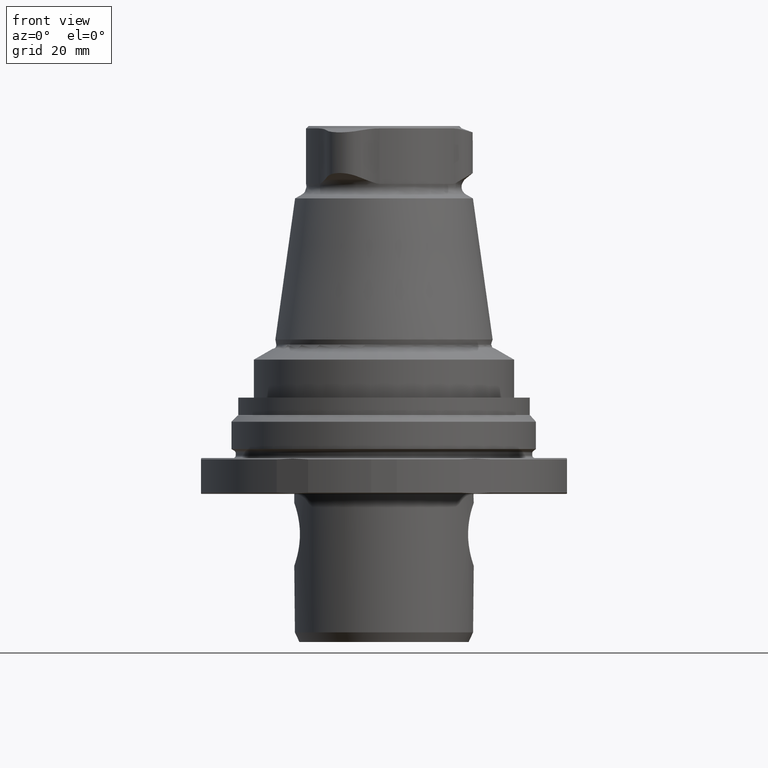
[diagram: clean part render]
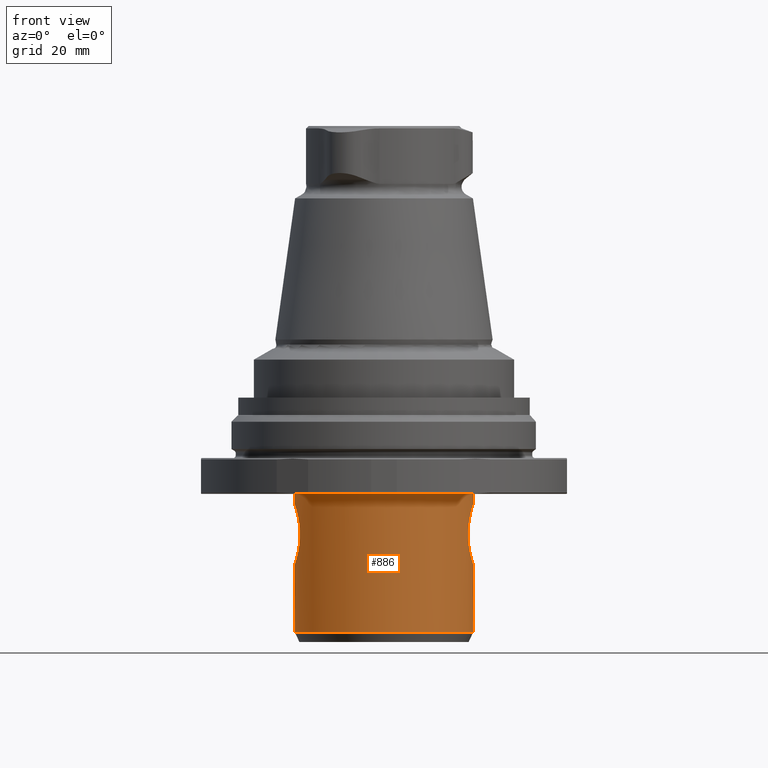
[diagram: same view with one face highlighted and labeled with its STEP entity id]
A machine part, front view. The second image highlights one B-rep face of the part: STEP entity #886.
In plain terms, the highlighted cylindrical surface (bore or boss wall) has radius 20 mm, axis along (0, 0, -1).
Its self-contained STEP definition (entity closure, byte-faithful):
#112=CIRCLE('',#964,20.);
#113=CIRCLE('',#965,20.);
#165=ORIENTED_EDGE('',*,*,#411,.F.);
#166=ORIENTED_EDGE('',*,*,#412,.T.);
#167=ORIENTED_EDGE('',*,*,#413,.F.);
#168=ORIENTED_EDGE('',*,*,#414,.T.);
#411=EDGE_CURVE('',#534,#534,#626,.T.);
#412=EDGE_CURVE('',#535,#535,#112,.T.);
#413=EDGE_CURVE('',#536,#536,#113,.T.);
#414=EDGE_CURVE('',#537,#537,#627,.T.);
#534=VERTEX_POINT('',#1365);
#535=VERTEX_POINT('',#1367);
#536=VERTEX_POINT('',#1369);
#537=VERTEX_POINT('',#1389);
#626=B_SPLINE_CURVE_WITH_KNOTS('',3,(#1346,#1347,#1348,#1349,#1350,#1351,
#1352,#1353,#1354,#1355,#1356,#1357,#1358,#1359,#1360,#1361,#1362,#1363,
#1364),.UNSPECIFIED.,.T.,.F.,(1,1,1,1,1,1,1,1,1,1,1,1,1,1,1,1,1,1,1,1,1,
1,1),(-0.00827199457178181,-0.00551466304785454,-0.00275733152392727,1.17747696370543E-18,
0.00275733152392727,0.00551466304785454,0.00827199457178181,0.0110293260957091,
0.0137866576196364,0.0165439891435636,0.0193013206674909,0.0220586521914182,
0.0248159837153454,0.0275733152392727,0.0303306467632,0.0330879782871273,
0.0358453098110545,0.0386026413349818,0.0413599728589091,0.0441173043828363,
0.0468746359067636,0.0496319674306909,0.0523892989546182),.UNSPECIFIED.);
#627=B_SPLINE_CURVE_WITH_KNOTS('',3,(#1370,#1371,#1372,#1373,#1374,#1375,
#1376,#1377,#1378,#1379,#1380,#1381,#1382,#1383,#1384,#1385,#1386,#1387,
#1388),.UNSPECIFIED.,.T.,.F.,(1,1,1,1,1,1,1,1,1,1,1,1,1,1,1,1,1,1,1,1,1,
1,1),(-0.00827466381188695,-0.00551644254125797,-0.00275822127062898,3.3134897217562E-19,
0.00275822127062898,0.00551644254125796,0.00827466381188695,0.0110328850825159,
0.0137911063531449,0.0165493276237739,0.0193075488944029,0.0220657701650319,
0.0248239914356608,0.0275822127062898,0.0303404339769188,0.0330986552475478,
0.0358568765181768,0.0386150977888058,0.0413733190594347,0.0441315403300637,
0.0468897616006927,0.0496479828713217,0.0524062041419507),.UNSPECIFIED.);
#668=EDGE_LOOP('',(#165));
#669=EDGE_LOOP('',(#166));
#670=EDGE_LOOP('',(#167));
#671=EDGE_LOOP('',(#168));
#763=FACE_BOUND('',#668,.T.);
#764=FACE_BOUND('',#669,.T.);
#765=FACE_BOUND('',#670,.T.);
#766=FACE_BOUND('',#671,.T.);
#858=CYLINDRICAL_SURFACE('',#963,20.);
#886=ADVANCED_FACE('',(#763,#764,#765,#766),#858,.T.);
#963=AXIS2_PLACEMENT_3D('',#1345,#1082,#1083);
#964=AXIS2_PLACEMENT_3D('',#1366,#1084,#1085);
#965=AXIS2_PLACEMENT_3D('',#1368,#1086,#1087);
#1082=DIRECTION('',(0.,0.,-1.));
#1083=DIRECTION('',(0.,1.,0.));
#1084=DIRECTION('',(1.22461692971323E-16,-7.49836836562635E-33,-1.));
#1085=DIRECTION('',(-1.,0.,-1.22461692971323E-16));
#1086=DIRECTION('',(0.,0.,-1.));
#1087=DIRECTION('',(0.,1.,0.));
#1345=CARTESIAN_POINT('',(0.,0.,-40.));
#1346=CARTESIAN_POINT('',(-19.8649591933729,2.76958324609662,-24.6267435874135));
#1347=CARTESIAN_POINT('',(-20.0675530394527,0.0004552993766481,-25.1867058637637));
#1348=CARTESIAN_POINT('',(-19.8648286488162,-2.77140444360321,-24.6264329575313));
#1349=CARTESIAN_POINT('',(-19.3795925254785,-5.07818285233162,-23.072833720461));
#1350=CARTESIAN_POINT('',(-18.8807534308337,-6.62602104875962,-20.769040289438));
#1351=CARTESIAN_POINT('',(-18.6623765403537,-7.18620834303151,-18.0066640654448));
#1352=CARTESIAN_POINT('',(-18.8797083173973,-6.62913503807033,-15.2340599194977));
#1353=CARTESIAN_POINT('',(-19.3807301173563,-5.07463924481907,-12.9228407716828));
#1354=CARTESIAN_POINT('',(-19.8651189238931,-2.767607985809,-11.3729077187532));
#1355=CARTESIAN_POINT('',(-20.0672811595735,-0.00335678219339149,-10.8140404518883));
#1356=CARTESIAN_POINT('',(-19.8657553843,2.76513407296644,-11.3709334837312));
#1357=CARTESIAN_POINT('',(-19.3801228451576,5.07696742894382,-12.9247927099749));
#1358=CARTESIAN_POINT('',(-18.8800361574797,6.62803079603392,-15.2339608604058));
#1359=CARTESIAN_POINT('',(-18.6624071808983,7.18614536274936,-17.9999377427822));
#1360=CARTESIAN_POINT('',(-18.8802991046361,6.62738771405921,-20.7680960278149));
#1361=CARTESIAN_POINT('',(-19.3802025510408,5.07622574285906,-23.0750639215115));
#1362=CARTESIAN_POINT('',(-19.8649591933729,2.76958324609662,-24.6267435874135));
#1363=CARTESIAN_POINT('',(-20.0675530394527,0.0004552993766481,-25.1867058637637));
#1364=CARTESIAN_POINT('',(-19.8648286488162,-2.77140444360321,-24.6264329575313));
#1365=CARTESIAN_POINT('',(-20.,1.21299241025182E-15,-24.9999999999999));
#1366=CARTESIAN_POINT('',(0.,0.,-8.99999999999999));
#1367=CARTESIAN_POINT('',(-20.,0.,-9.));
#1368=CARTESIAN_POINT('',(0.,0.,-39.8554930794905));
#1369=CARTESIAN_POINT('',(0.,20.,-39.8554930794905));
#1370=CARTESIAN_POINT('',(19.8646762557932,2.77027417162866,-24.6252320284249));
#1371=CARTESIAN_POINT('',(20.067687523882,0.000442284099638475,-25.1938391832771));
#1372=CARTESIAN_POINT('',(19.8645736486787,-2.77204330802721,-24.6250120990173));
#1373=CARTESIAN_POINT('',(19.3810291166969,-5.07155984984813,-23.0585363112863));
#1374=CARTESIAN_POINT('',(18.8845725861042,-6.61541575993611,-20.752070242444));
#1375=CARTESIAN_POINT('',(18.6625231501187,-7.18582964320088,-17.992726276448));
#1376=CARTESIAN_POINT('',(18.8754846384485,-6.6407682394913,-15.2165164205142));
#1377=CARTESIAN_POINT('',(19.3787521418714,-5.08328236917158,-12.9040592612274));
#1378=CARTESIAN_POINT('',(19.8652500949956,-2.76836429511373,-11.3637754078637));
#1379=CARTESIAN_POINT('',(20.0672619189514,-0.00252766068245652,-10.8120694731876));
#1380=CARTESIAN_POINT('',(19.865701669246,2.76688232386952,-11.362347420122));
#1381=CARTESIAN_POINT('',(19.3781223751111,5.08560578391087,-12.9062015653983));
#1382=CARTESIAN_POINT('',(18.8758801861453,6.63949104038357,-15.2158760418645));
#1383=CARTESIAN_POINT('',(18.6624751881201,7.18597032612478,-17.9867567205143));
#1384=CARTESIAN_POINT('',(18.8843276180982,6.61624068030541,-20.7524555909608));
#1385=CARTESIAN_POINT('',(19.3818414543828,5.0687516354189,-23.061451916891));
#1386=CARTESIAN_POINT('',(19.8646762557932,2.77027417162866,-24.6252320284249));
#1387=CARTESIAN_POINT('',(20.067687523882,0.000442284099638475,-25.1938391832771));
#1388=CARTESIAN_POINT('',(19.8645736486787,-2.77204330802721,-24.6250120990173));
#1389=CARTESIAN_POINT('',(20.,-3.41408731107831E-16,-25.0042668100918));